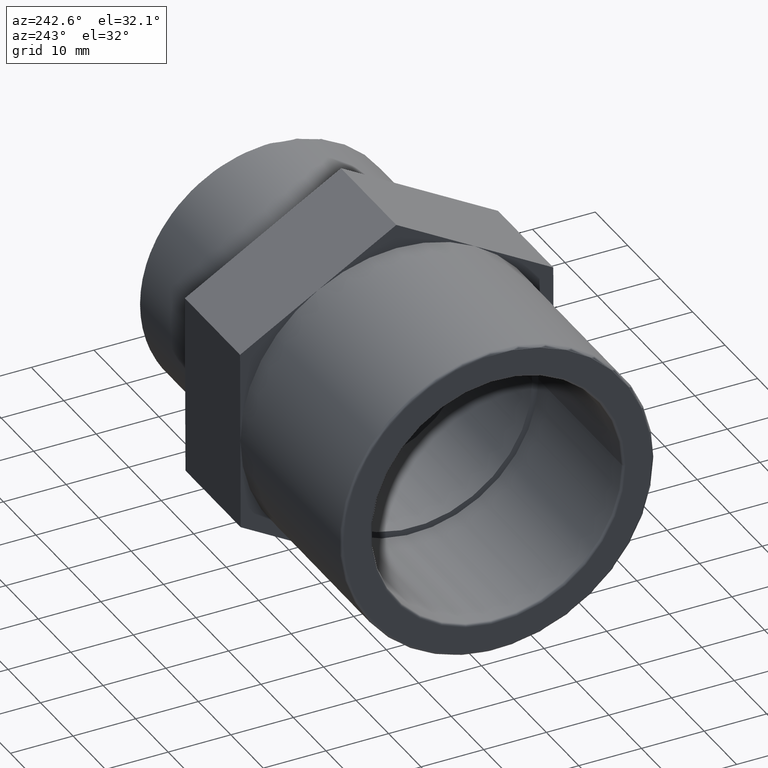
[diagram: clean part render]
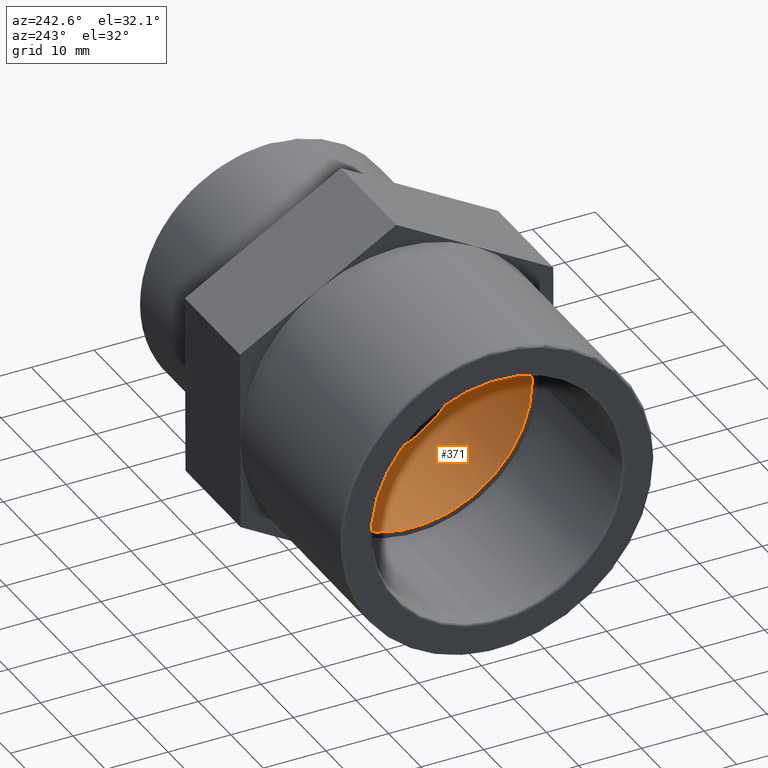
[diagram: same view with one face highlighted and labeled with its STEP entity id]
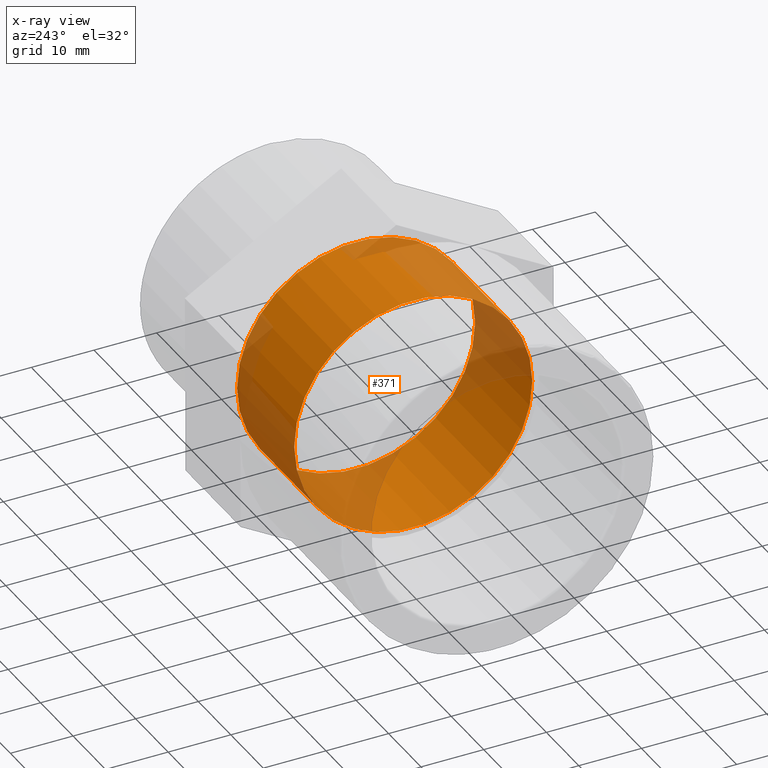
[diagram: x-ray of the same camera — body ghosted, the highlighted face saturated]
A machine part, auxiliary view. The second image highlights one B-rep face of the part: STEP entity #371.
The next image is the same camera in x-ray: the body ghosted, the highlighted face saturated — about 37% of this face is hidden behind the body in this view.
In plain terms, the highlighted cylindrical surface (bore or boss wall) has radius 19 mm, axis along (-1, -0, 0).
Its self-contained STEP definition (entity closure, byte-faithful):
#19=CYLINDRICAL_SURFACE('',#417,19.);
#31=FACE_BOUND('',#118,.T.);
#55=CIRCLE('',#416,19.);
#56=CIRCLE('',#418,19.);
#80=FACE_OUTER_BOUND('',#117,.T.);
#117=EDGE_LOOP('',(#320));
#118=EDGE_LOOP('',(#321));
#200=VERTEX_POINT('',#631);
#201=VERTEX_POINT('',#634);
#243=EDGE_CURVE('',#200,#200,#55,.T.);
#244=EDGE_CURVE('',#201,#201,#56,.T.);
#320=ORIENTED_EDGE('',*,*,#244,.F.);
#321=ORIENTED_EDGE('',*,*,#243,.T.);
#371=ADVANCED_FACE('',(#80,#31),#19,.F.);
#416=AXIS2_PLACEMENT_3D('',#632,#527,#528);
#417=AXIS2_PLACEMENT_3D('',#633,#529,#530);
#418=AXIS2_PLACEMENT_3D('',#635,#531,#532);
#527=DIRECTION('center_axis',(-1.,-6.73555739531044E-16,0.));
#528=DIRECTION('ref_axis',(0.,0.,1.));
#529=DIRECTION('center_axis',(-1.,-6.73555739531044E-16,0.));
#530=DIRECTION('ref_axis',(6.66133814775094E-16,-1.,0.));
#531=DIRECTION('center_axis',(-1.,-6.73555739531044E-16,0.));
#532=DIRECTION('ref_axis',(0.,0.,1.));
#631=CARTESIAN_POINT('',(-9.,-19.,0.));
#632=CARTESIAN_POINT('Origin',(-9.00000000000001,3.67394039744199E-16,0.));
#633=CARTESIAN_POINT('Origin',(-0.200000000000005,6.29468454761739E-15,
0.));
#634=CARTESIAN_POINT('',(8.60000000000002,-19.,0.));
#635=CARTESIAN_POINT('Origin',(8.60000000000001,1.22219750554906E-14,0.));